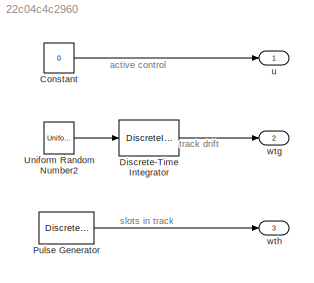
MODEL slx_22c04c4c2960
KIND model
CONFIG AbsTol = auto
CONFIG EnableMultiTasking = off
CONFIG FixedStep = auto
CONFIG MaxStep = auto
CONFIG MinStep = auto
CONFIG RelTol = 1e-3
CONFIG SampleTimeConstraint = Unconstrained
CONFIG Solver = VariableStepAuto
CONFIG SolverName = VariableStepAuto
CONFIG StartTime = 0.0
CONFIG StopTime = 10.0
BLOCK [Constant] Constant
  Value = 0
BLOCK [DiscreteIntegrator] Discrete-Time Integrator
  ICPrevOutput = DiscIntNeverNeededParam
  ICPrevScaledInput = DiscIntNeverNeededParam
  InitialConditionSetting = State (most efficient)
  LimitOutput = on
  LowerSaturationLimit = -track_drift_max
  Ports = [1, 1]
  SampleTime = -1
  UpperSaturationLimit = track_drift_max
BLOCK [DiscretePulseGenerator] Pulse Generator
  Amplitude = slot_depth
  Period = period
  PhaseDelay = wth_pulse_phase_delay
  Ports = [0, 1]
  PulseType = Time based
  PulseWidth = wth_pulse_width
BLOCK [UniformRandomNumber] Uniform Random Number2
  Maximum = track_drift_incremental
  Minimum = -track_drift_incremental
  SampleTime = period
BLOCK [Outport] u
  IconDisplay = Port number
BLOCK [Outport] wtg
  IconDisplay = Port number
  Port = 2
BLOCK [Outport] wth
  IconDisplay = Port number
  Port = 3
ANNOTATION (root): active control
ANNOTATION (root): slots in track
ANNOTATION (root): track drift
LINE Constant:1 -> u:1
LINE Discrete-Time Integrator:1 -> wtg:1
LINE Pulse Generator:1 -> wth:1
LINE Uniform Random Number2:1 -> Discrete-Time Integrator:1
